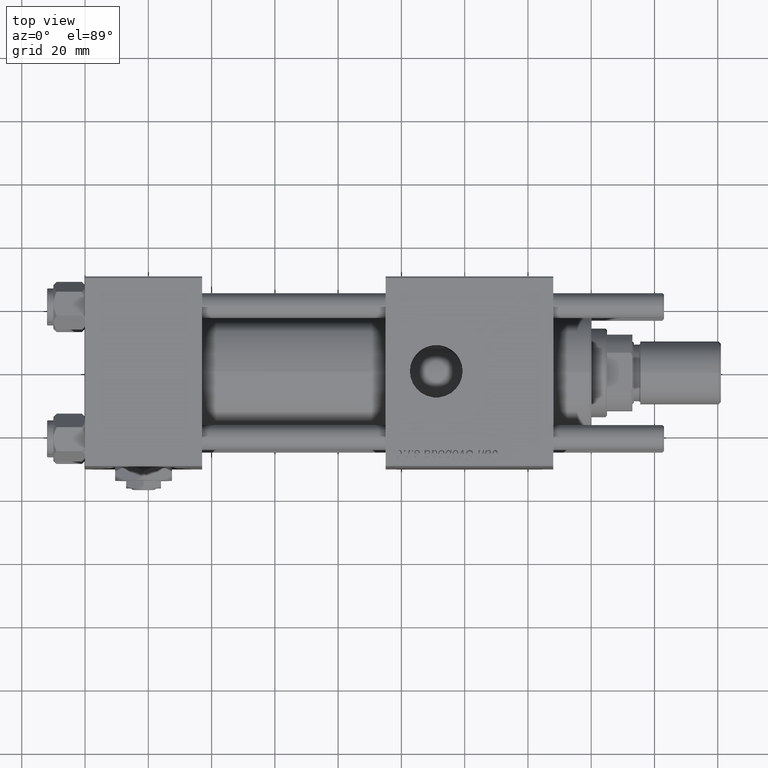
[diagram: clean part render]
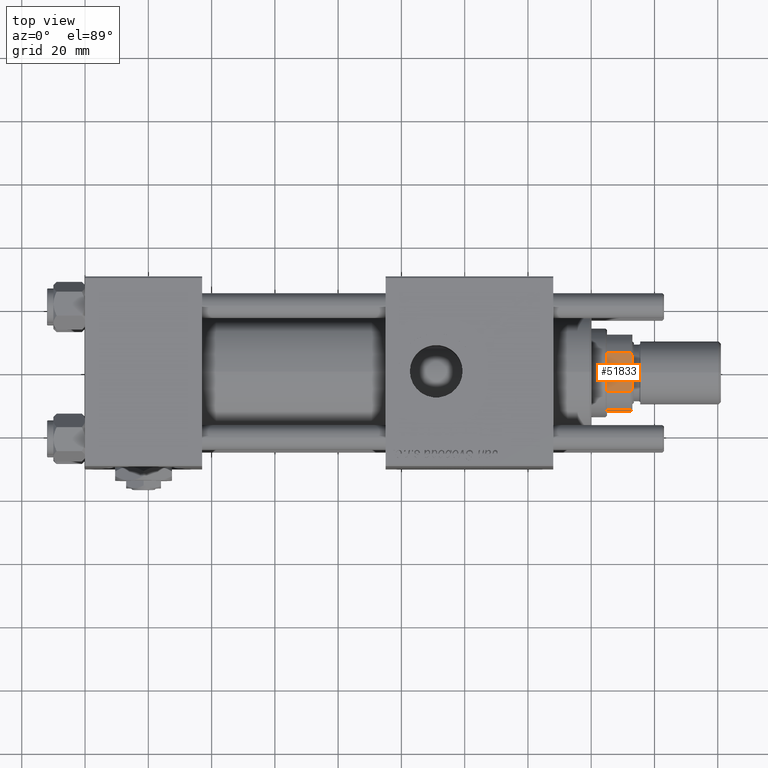
[diagram: same view with one face highlighted and labeled with its STEP entity id]
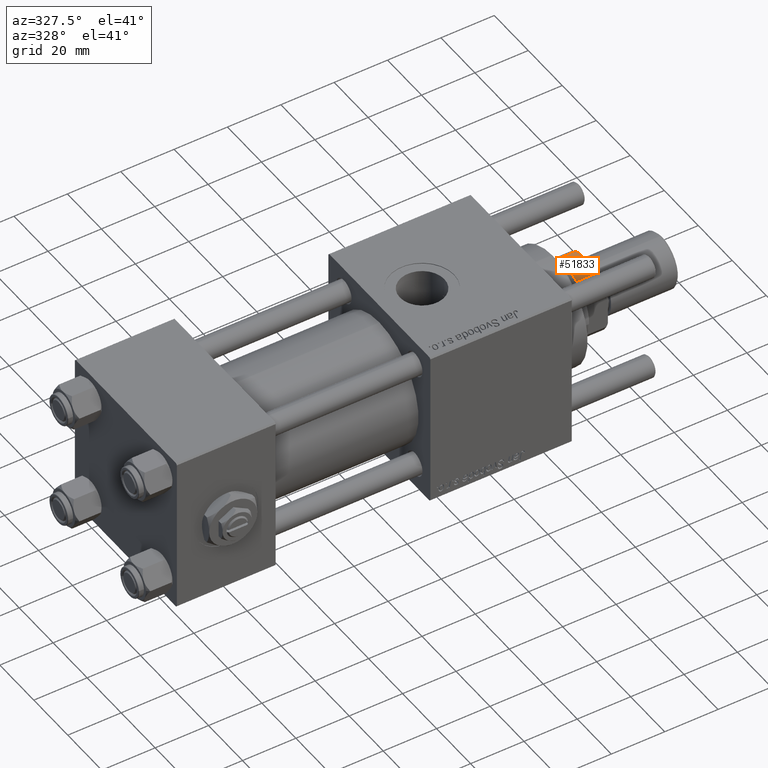
[diagram: same view with one face highlighted and labeled with its STEP entity id]
A machine part, top view. The second image highlights one B-rep face of the part: STEP entity #51833.
A second angle (auxiliary view) of the same face is appended — the face is thin or edge-on in the first view.
In plain terms, the highlighted planar face has unit normal (0, 0, -1).
Its self-contained STEP definition (entity closure, byte-faithful):
#379 = EDGE_LOOP ( 'NONE', ( #3365, #45188, #58461, #44664, #25890, #13975 ) ) ;
#994 = DIRECTION ( 'NONE',  ( 1.000000000000000000, 0.000000000000000000, 0.000000000000000000 ) ) ;
#2249 = B_SPLINE_CURVE_WITH_KNOTS ( 'NONE', 3,
 ( #32025, #14102, #34383, #2744 ),
 .UNSPECIFIED., .F., .F.,
 ( 4, 4 ),
 ( 0.000000000000000000, 0.001285852097146092258 ),
 .UNSPECIFIED. ) ;
#2744 = CARTESIAN_POINT ( 'NONE',  ( -6.184658438426496652, -11.99999999999999645, 135.5000000000000284 ) ) ;
#2763 = VECTOR ( 'NONE', #8954, 1000.000000000000000 ) ;
#3113 = EDGE_CURVE ( 'NONE', #57973, #42576, #2249, .T. ) ;
#3365 = ORIENTED_EDGE ( 'NONE', *, *, #23946, .T. ) ;
#3523 = CARTESIAN_POINT ( 'NONE',  ( -6.184658438426496652, -11.99999999999999645, 128.0000000000000853 ) ) ;
#3859 = CARTESIAN_POINT ( 'NONE',  ( 5.794808544282259888, -11.99999999999999645, 135.6785991435214385 ) ) ;
#5498 = FACE_OUTER_BOUND ( 'NONE', #379, .T. ) ;
#8954 = DIRECTION ( 'NONE',  ( -0.000000000000000000, -0.000000000000000000, 1.000000000000000000 ) ) ;
#9084 = EDGE_CURVE ( 'NONE', #20009, #45695, #55317, .T. ) ;
#12605 = CARTESIAN_POINT ( 'NONE',  ( 6.184658438426496652, -11.99999999999999645, 135.5000000000000284 ) ) ;
#13975 = ORIENTED_EDGE ( 'NONE', *, *, #9084, .T. ) ;
#14102 = CARTESIAN_POINT ( 'NONE',  ( -5.400255697127810173, -12.00000000000000355, 135.8460555011047006 ) ) ;
#15220 = DIRECTION ( 'NONE',  ( -0.000000000000000000, -0.000000000000000000, 1.000000000000000000 ) ) ;
#20009 = VERTEX_POINT ( 'NONE', #3523 ) ;
#22058 = CARTESIAN_POINT ( 'NONE',  ( 6.184658438426496652, -11.99999999999999645, 135.5000000000000284 ) ) ;
#22087 = LINE ( 'NONE', #54331, #39323 ) ;
#23946 = EDGE_CURVE ( 'NONE', #45695, #34549, #50758, .T. ) ;
#24117 = CARTESIAN_POINT ( 'NONE',  ( 5.000000000000053291, -12.00000000000000355, 136.0000000000000000 ) ) ;
#25890 = ORIENTED_EDGE ( 'NONE', *, *, #42927, .F. ) ;
#25980 = CARTESIAN_POINT ( 'NONE',  ( 5.000000000000053291, -12.00000000000000355, 136.0000000000000000 ) ) ;
#26581 = DIRECTION ( 'NONE',  ( 1.000000000000000000, 0.000000000000000000, 0.000000000000000000 ) ) ;
#26824 = B_SPLINE_CURVE_WITH_KNOTS ( 'NONE', 3,
 ( #22058, #3859, #39698, #25980 ),
 .UNSPECIFIED., .F., .F.,
 ( 4, 4 ),
 ( 0.000000000000000000, 0.001285852097146072308 ),
 .UNSPECIFIED. ) ;
#27887 = PLANE ( 'NONE',  #41456 ) ;
#31994 = VECTOR ( 'NONE', #994, 1000.000000000000000 ) ;
#32025 = CARTESIAN_POINT ( 'NONE',  ( -5.000000000000031086, -12.00000000000000355, 136.0000000000000000 ) ) ;
#32617 = EDGE_CURVE ( 'NONE', #57973, #53511, #22087, .T. ) ;
#34383 = CARTESIAN_POINT ( 'NONE',  ( -5.794808544282252782, -12.00000000000000355, 135.6785991435214385 ) ) ;
#34549 = VERTEX_POINT ( 'NONE', #12605 ) ;
#36667 = CARTESIAN_POINT ( 'NONE',  ( 6.184658438426496652, -11.99999999999999645, 128.0000000000000853 ) ) ;
#39323 = VECTOR ( 'NONE', #26581, 1000.000000000000000 ) ;
#39698 = CARTESIAN_POINT ( 'NONE',  ( 5.400255697127826160, -12.00000000000000355, 135.8460555011047006 ) ) ;
#40377 = CARTESIAN_POINT ( 'NONE',  ( -6.184658438426496652, -11.99999999999999645, 135.5000000000000284 ) ) ;
#41456 = AXIS2_PLACEMENT_3D ( 'NONE', #46682, #55641, #50577 ) ;
#41884 = CARTESIAN_POINT ( 'NONE',  ( -11.99999999999999822, -12.00000000000000355, 128.0000000000000000 ) ) ;
#42576 = VERTEX_POINT ( 'NONE', #40377 ) ;
#42927 = EDGE_CURVE ( 'NONE', #20009, #42576, #57006, .T. ) ;
#43074 = VECTOR ( 'NONE', #15220, 1000.000000000000000 ) ;
#44664 = ORIENTED_EDGE ( 'NONE', *, *, #3113, .T. ) ;
#45188 = ORIENTED_EDGE ( 'NONE', *, *, #58179, .T. ) ;
#45687 = CARTESIAN_POINT ( 'NONE',  ( 6.184658438426496652, -11.99999999999999645, -0.001000000000001000089 ) ) ;
#45695 = VERTEX_POINT ( 'NONE', #36667 ) ;
#46296 = CARTESIAN_POINT ( 'NONE',  ( -5.000000000000031086, -12.00000000000000355, 136.0000000000000000 ) ) ;
#46682 = CARTESIAN_POINT ( 'NONE',  ( -11.99999999999999822, -12.00000000000000355, 136.0000000000000000 ) ) ;
#47159 = CARTESIAN_POINT ( 'NONE',  ( -6.184658438426496652, -11.99999999999999645, -0.001000000000001000089 ) ) ;
#50577 = DIRECTION ( 'NONE',  ( 0.000000000000000000, -0.000000000000000000, 1.000000000000000000 ) ) ;
#50758 = LINE ( 'NONE', #45687, #2763 ) ;
#51833 = ADVANCED_FACE ( 'NONE', ( #5498 ), #27887, .F. ) ;
#53511 = VERTEX_POINT ( 'NONE', #24117 ) ;
#54331 = CARTESIAN_POINT ( 'NONE',  ( -11.99999999999999822, -12.00000000000000355, 136.0000000000000000 ) ) ;
#55317 = LINE ( 'NONE', #41884, #31994 ) ;
#55641 = DIRECTION ( 'NONE',  ( 0.000000000000000000, 1.000000000000000000, 0.000000000000000000 ) ) ;
#57006 = LINE ( 'NONE', #47159, #43074 ) ;
#57973 = VERTEX_POINT ( 'NONE', #46296 ) ;
#58179 = EDGE_CURVE ( 'NONE', #34549, #53511, #26824, .T. ) ;
#58461 = ORIENTED_EDGE ( 'NONE', *, *, #32617, .F. ) ;